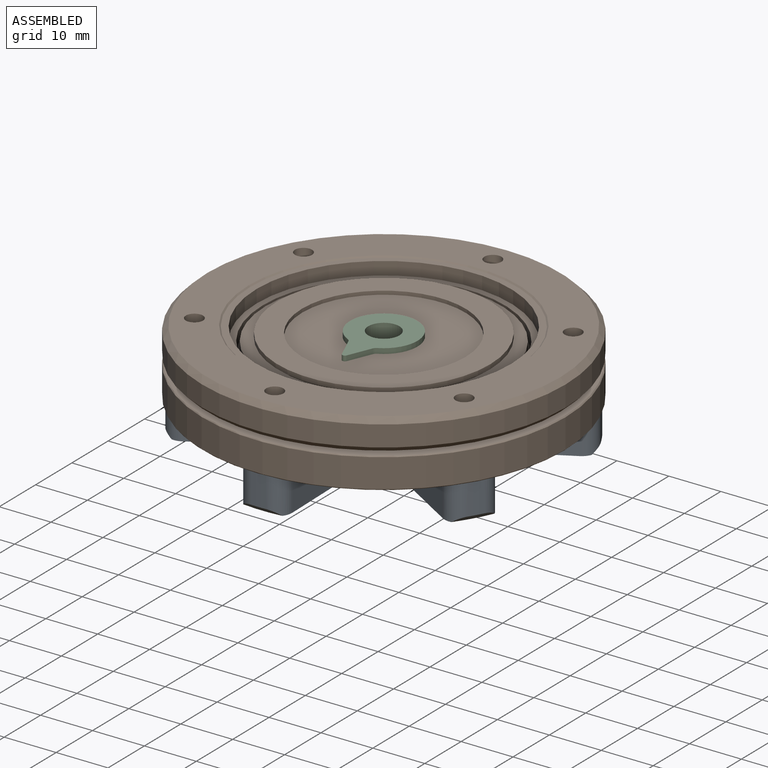
[diagram: assembled view]
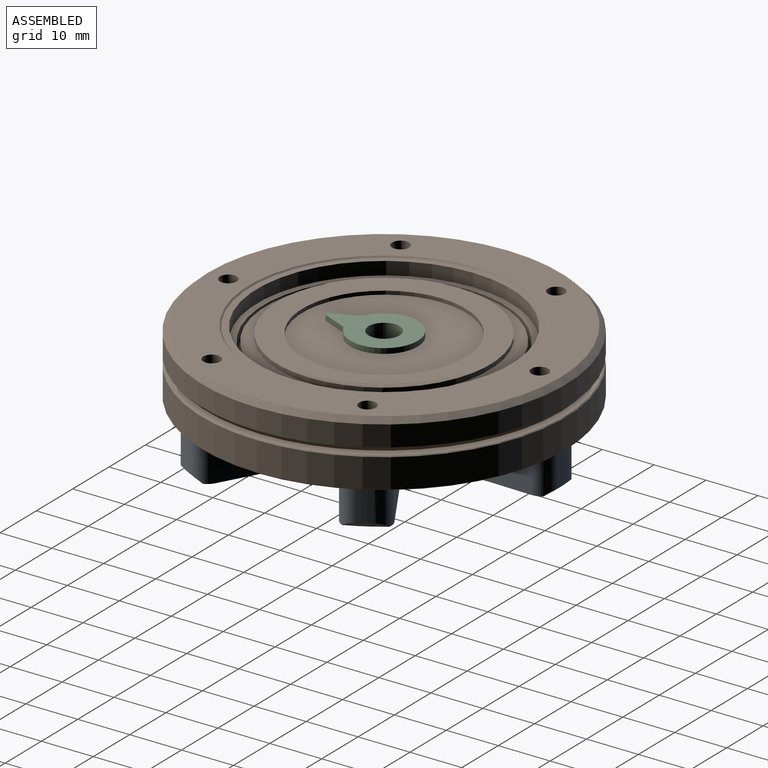
[diagram: assembled view, second angle]
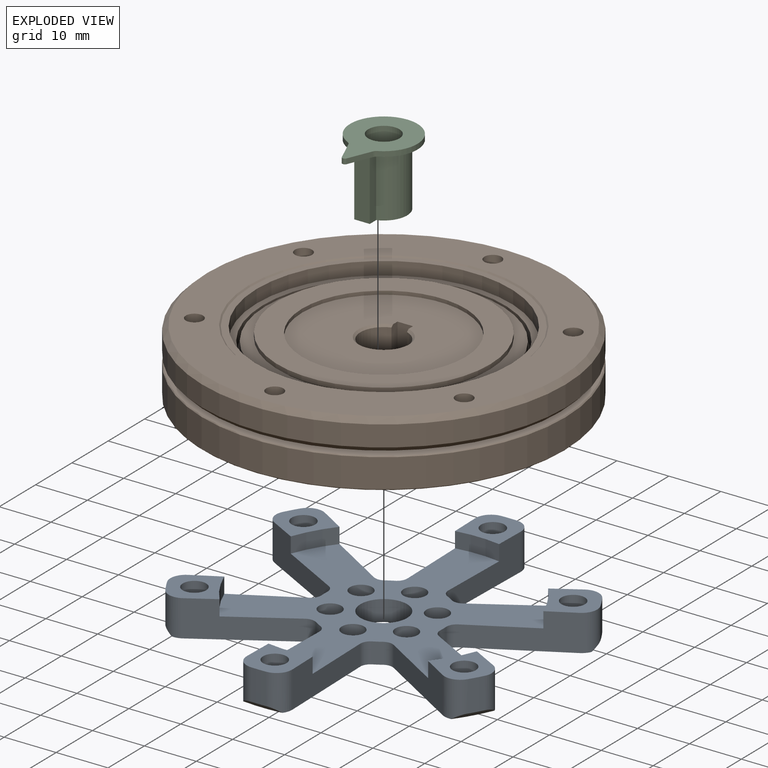
[diagram: exploded view]
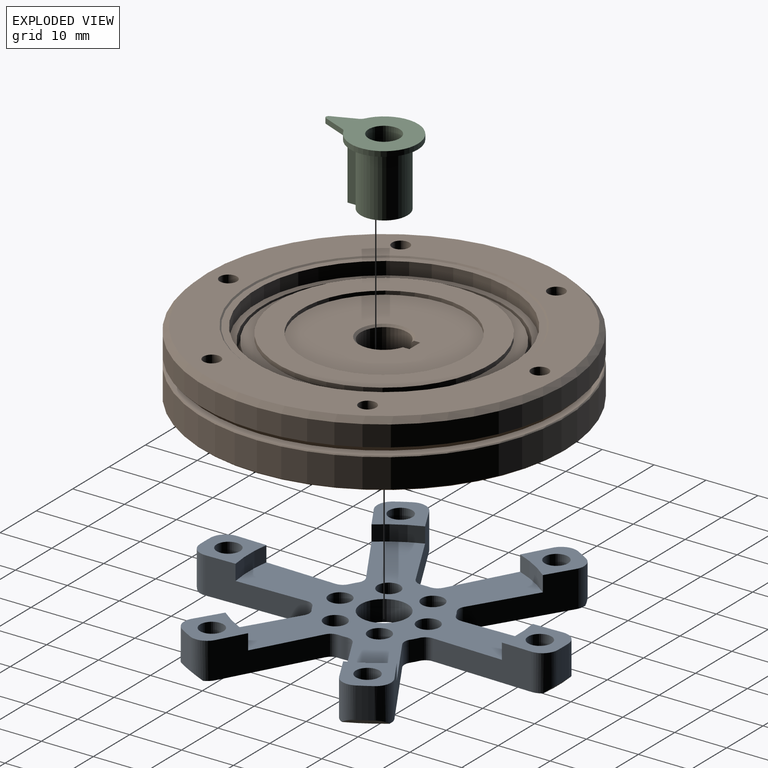
[diagram: exploded view, second angle]
ASSEMBLY  parts=3 mates=2
PART A: 93 faces, bbox 69x63.3x7 mm
  f0: cylinder r=1.25mm len=2.5mm, axis (0,0,-1), area 15.7mm2, adj f41,f59
  f1: cylinder r=1.25mm len=2.5mm, axis (0,0,-1), area 15.7mm2, adj f41,f61
  f2: cylinder r=1.25mm len=2.5mm, axis (0,0,-1), area 15.7mm2, adj f41,f63
  f3: cylinder r=1.25mm len=2.5mm, axis (0,0,-1), area 15.7mm2, adj f41,f65
  f4: cylinder r=1.25mm len=2.5mm, axis (0,0,-1), area 15.7mm2, adj f41,f67
  f5: cylinder r=1.25mm len=2.5mm, axis (0,0,-1), area 15.7mm2, adj f41,f57
  f6: cylinder r=34.5mm len=6mm, axis (0,0,1), area 18.2mm2, adj f7,f51,f82,f83
  f7: plane 10.85x10.78mm, normal (0,0,1), area 54.8mm2, adj f6,f8,f10,f16,f19,f82,f83
  f8: cylinder r=26mm len=7.35mm, axis (0,0,1), area 25.6mm2, adj f7,f10,f16,f46
  f9: plane 16.91x9.24mm, normal (-0.88,0.48,0), area 94.3mm2, adj f41,f44,f45,f46,f70,f81
  f10: plane 16.91x9.24mm, normal (0.88,0.48,0), area 94.3mm2, adj f7,f8,f41,f46,f69,f82
  f11: cylinder r=11.46mm len=4mm, axis (0,0,-1), area 6.2mm2, adj f41,f46,f69,f70
  f12: cylinder r=2.25mm len=7mm, axis (0,0,-1), area 99mm2, adj f41,f44
  f13: cylinder r=34.5mm len=6mm, axis (0,0,1), area 18.2mm2, adj f14,f52,f84,f85
  f14: plane 8.85x8.76mm, normal (0,0,1), area 54.8mm2, adj f13,f15,f17,f23,f26,f84,f85
  f15: cylinder r=26mm len=8.49mm, axis (0,0,1), area 25.6mm2, adj f14,f17,f23,f46
  f16: plane 16.46x10.03mm, normal (-0.85,-0.52,0), area 94.3mm2, adj f7,f8,f41,f46,f72,f83
  f17: plane 19.27x7mm, normal (0.02,1,0), area 94.3mm2, adj f14,f15,f41,f46,f71,f84
  f18: cylinder r=11.46mm len=4mm, axis (0,0,-1), area 6.2mm2, adj f41,f46,f71,f72
  f19: cylinder r=2.25mm len=7mm, axis (0,0,-1), area 99mm2, adj f7,f41
  f20: cylinder r=34.5mm len=6mm, axis (0,0,1), area 18.2mm2, adj f21,f53,f86,f87
  f21: plane 10.85x10.78mm, normal (0,0,1), area 54.8mm2, adj f20,f22,f24,f30,f33,f86,f87
  f22: cylinder r=26mm len=7.35mm, axis (0,0,1), area 25.6mm2, adj f21,f24,f30,f46
  f23: plane 19.27x7mm, normal (0.02,-1,0), area 94.3mm2, adj f14,f15,f41,f46,f74,f85
  f24: plane 16.46x10.03mm, normal (-0.85,0.52,0), area 94.3mm2, adj f21,f22,f41,f46,f73,f86
  f25: cylinder r=11.46mm len=4mm, axis (0,0,-1), area 6.2mm2, adj f41,f46,f73,f74
  f26: cylinder r=2.25mm len=7mm, axis (0,0,-1), area 99mm2, adj f14,f41
  f27: cylinder r=34.5mm len=6mm, axis (0,0,1), area 18.2mm2, adj f28,f54,f88,f89
  f28: plane 10.85x10.78mm, normal (0,0,1), area 54.8mm2, adj f27,f29,f31,f37,f40,f88,f89
  f29: cylinder r=26mm len=7.35mm, axis (0,0,1), area 25.6mm2, adj f28,f31,f37,f46
  f30: plane 16.91x9.24mm, normal (0.88,-0.48,0), area 94.3mm2, adj f21,f22,f41,f46,f76,f87
  f31: plane 16.91x9.24mm, normal (-0.88,-0.48,0), area 94.3mm2, adj f28,f29,f41,f46,f75,f88
  f32: cylinder r=11.46mm len=4mm, axis (0,0,-1), area 6.2mm2, adj f41,f46,f75,f76
  f33: cylinder r=2.25mm len=7mm, axis (0,0,-1), area 99mm2, adj f21,f41
  f34: cylinder r=34.5mm len=6mm, axis (0,0,1), area 18.2mm2, adj f35,f56,f90,f91
  f35: plane 8.85x8.76mm, normal (0,0,1), area 54.8mm2, adj f34,f36,f38,f49,f50,f90,f91
  f36: cylinder r=26mm len=8.49mm, axis (0,0,1), area 25.6mm2, adj f35,f38,f46,f49
  f37: plane 16.46x10.03mm, normal (0.85,0.52,0), area 94.3mm2, adj f28,f29,f41,f46,f78,f89
  f38: plane 19.27x7mm, normal (-0.02,-1,0), area 94.3mm2, adj f35,f36,f41,f46,f77,f90
  f39: cylinder r=11.46mm len=4mm, axis (0,0,-1), area 6.2mm2, adj f41,f46,f77,f78
  f40: cylinder r=2.25mm len=7mm, axis (0,0,-1), area 99mm2, adj f28,f41
  f41: plane 67x61.42mm, normal (0,0,-1), area 1332.1mm2, adj f0,f1,f2,f3,f4,f5,f9,f10
  f42: cylinder r=34.5mm len=6mm, axis (0,0,1), area 18.2mm2, adj f44,f55,f81,f92
  f43: cylinder r=4.5mm len=9mm, axis (0,0,1), area 113.1mm2, adj f41,f46
  f44: plane 10.85x10.78mm, normal (0,0,1), area 54.8mm2, adj f9,f12,f42,f45,f48,f81,f92
  f45: cylinder r=26mm len=7.35mm, axis (0,0,1), area 25.6mm2, adj f9,f44,f46,f48
  f46: plane 52x48.68mm, normal (0,0,1), area 982.7mm2, adj f8,f9,f10,f11,f15,f16,f17,f18
  f47: cylinder r=11.46mm len=4mm, axis (0,0,-1), area 6.2mm2, adj f41,f46,f79,f80
  f48: plane 16.46x10.03mm, normal (0.85,-0.52,0), area 94.3mm2, adj f41,f44,f45,f46,f80,f92
  f49: plane 19.27x7mm, normal (-0.02,1,0), area 94.3mm2, adj f35,f36,f41,f46,f79,f91
  f50: cylinder r=2.25mm len=7mm, axis (0,0,-1), area 99mm2, adj f35,f41
  f51: cone r=34.5mm half-angle=45deg, axis (0,0,1), area 8.8mm2, adj f6,f41,f82,f83
  f52: cone r=34.5mm half-angle=45deg, axis (0,0,1), area 8.8mm2, adj f13,f41,f84,f85
  f53: cone r=34.5mm half-angle=45deg, axis (0,0,1), area 8.8mm2, adj f20,f41,f86,f87
  f54: cone r=34.5mm half-angle=45deg, axis (0,0,1), area 8.8mm2, adj f27,f41,f88,f89
  f55: cone r=34.5mm half-angle=45deg, axis (0,0,1), area 8.8mm2, adj f41,f42,f81,f92
  f56: cone r=34.5mm half-angle=45deg, axis (0,0,1), area 8.8mm2, adj f34,f41,f90,f91
  f57: plane 4.3x4.3mm, normal (0,0,1), area 9.6mm2, adj f5,f58
  f58: cylinder r=2.15mm len=4.3mm, axis (0,0,1), area 27mm2, adj f46,f57
  f59: plane 4.3x4.3mm, normal (0,0,1), area 9.6mm2, adj f0,f60
  f60: cylinder r=2.15mm len=4.3mm, axis (0,0,1), area 27mm2, adj f46,f59
  f61: plane 4.3x4.3mm, normal (0,0,1), area 9.6mm2, adj f1,f62
  f62: cylinder r=2.15mm len=4.3mm, axis (0,0,1), area 27mm2, adj f46,f61
  f63: plane 4.3x4.3mm, normal (0,0,1), area 9.6mm2, adj f2,f64
  f64: cylinder r=2.15mm len=4.3mm, axis (0,0,1), area 27mm2, adj f46,f63
  f65: plane 4.3x4.3mm, normal (0,0,1), area 9.6mm2, adj f3,f66
  f66: cylinder r=2.15mm len=4.3mm, axis (0,0,1), area 27mm2, adj f46,f65
  f67: plane 4.3x4.3mm, normal (0,0,1), area 9.6mm2, adj f4,f68
  f68: cylinder r=2.15mm len=4.3mm, axis (0,0,1), area 27mm2, adj f46,f67
  f69: cylinder r=2mm len=4mm, axis (0,0,-1), area 9.1mm2, adj f10,f11,f41,f46
  f70: cylinder r=2mm len=4mm, axis (0,0,-1), area 9.1mm2, adj f9,f11,f41,f46
  f71: cylinder r=2mm len=4mm, axis (0,0,-1), area 9.1mm2, adj f17,f18,f41,f46
  f72: cylinder r=2mm len=4mm, axis (0,0,-1), area 9.1mm2, adj f16,f18,f41,f46
  f73: cylinder r=2mm len=4mm, axis (0,0,-1), area 9.1mm2, adj f24,f25,f41,f46
  f74: cylinder r=2mm len=4mm, axis (0,0,-1), area 9.1mm2, adj f23,f25,f41,f46
  f75: cylinder r=2mm len=4mm, axis (0,0,-1), area 9.1mm2, adj f31,f32,f41,f46
  f76: cylinder r=2mm len=4mm, axis (0,0,-1), area 9.1mm2, adj f30,f32,f41,f46
  f77: cylinder r=2mm len=4mm, axis (0,0,-1), area 9.1mm2, adj f38,f39,f41,f46
  f78: cylinder r=2mm len=4mm, axis (0,0,-1), area 9.1mm2, adj f37,f39,f41,f46
  f79: cylinder r=2mm len=4mm, axis (0,0,-1), area 9.1mm2, adj f41,f46,f47,f49
  f80: cylinder r=2mm len=4mm, axis (0,0,-1), area 9.1mm2, adj f41,f46,f47,f48
  f81: cylinder r=3mm len=7mm, axis (0,0,1), area 30.8mm2, adj f9,f41,f42,f44,f55
  f82: cylinder r=3mm len=7mm, axis (0,0,1), area 30.8mm2, adj f6,f7,f10,f41,f51
  f83: cylinder r=3mm len=7mm, axis (0,0,1), area 30.8mm2, adj f6,f7,f16,f41,f51
  f84: cylinder r=3mm len=7mm, axis (0,0,1), area 30.8mm2, adj f13,f14,f17,f41,f52
  f85: cylinder r=3mm len=7mm, axis (0,0,1), area 30.8mm2, adj f13,f14,f23,f41,f52
  f86: cylinder r=3mm len=7mm, axis (0,0,1), area 30.8mm2, adj f20,f21,f24,f41,f53
  f87: cylinder r=3mm len=7mm, axis (0,0,1), area 30.8mm2, adj f20,f21,f30,f41,f53
  f88: cylinder r=3mm len=7mm, axis (0,0,1), area 30.8mm2, adj f27,f28,f31,f41,f54
  f89: cylinder r=3mm len=7mm, axis (0,0,1), area 30.8mm2, adj f27,f28,f37,f41,f54
  f90: cylinder r=3mm len=7mm, axis (0,0,1), area 30.8mm2, adj f34,f35,f38,f41,f56
  f91: cylinder r=3mm len=7mm, axis (0,0,1), area 30.8mm2, adj f34,f35,f41,f49,f56
  f92: cylinder r=3mm len=7mm, axis (0,0,1), area 30.8mm2, adj f41,f42,f44,f48,f55
PART B: 55 faces, bbox 13.5x70x70 mm
  f0: cylinder r=1.65mm len=6mm, axis (1,0,0), area 62.2mm2, adj f40,f47
  f1: cylinder r=1.65mm len=6mm, axis (1,0,0), area 62.2mm2, adj f40,f47
  f2: cylinder r=1.65mm len=6mm, axis (1,0,0), area 62.2mm2, adj f40,f47
  f3: cylinder r=1.65mm len=6mm, axis (1,0,0), area 62.2mm2, adj f40,f47
  f4: cylinder r=1.65mm len=6mm, axis (1,0,0), area 62.2mm2, adj f40,f47
  f5: cylinder r=1.65mm len=6mm, axis (-1,0,0), area 62.2mm2, adj f41,f48
  f6: cylinder r=1.65mm len=6mm, axis (-1,0,0), area 62.2mm2, adj f41,f48
  f7: cylinder r=1.65mm len=6mm, axis (-1,0,0), area 62.2mm2, adj f41,f48
  f8: cylinder r=1.65mm len=6mm, axis (-1,0,0), area 62.2mm2, adj f41,f48
  f9: cylinder r=1.65mm len=6mm, axis (-1,0,0), area 62.2mm2, adj f41,f48
  f10: cylinder r=1.65mm len=6mm, axis (1,0,0), area 62.2mm2, adj f40,f47
  f11: cylinder r=1.65mm len=6mm, axis (-1,0,0), area 62.2mm2, adj f41,f48
  f12: cylinder r=19.75mm len=39.5mm, axis (-1,0,0), area 195.2mm2, adj f34,f51
  f13: cylinder r=22.75mm len=45.5mm, axis (-1,0,0), area 238.8mm2, adj f14,f51
  f14: torus R=21.18mm, axis (-1,0,0), area 120.2mm2, adj f13,f15
  f15: cylinder r=23.3mm len=46.6mm, axis (-1,0,0), area 334.8mm2, adj f14,f50
  f16: cylinder r=24.5mm len=49mm, axis (-1,0,0), area 386.7mm2, adj f49,f50
  f17: cone r=26mm half-angle=45deg, axis (-1,0,0), area 58.8mm2, adj f41,f49
  f18: cone r=35mm half-angle=45deg, axis (1,0,0), area 306.6mm2, adj f19,f41
  f19: cylinder r=35mm len=70mm, axis (-1,0,0), area 879.6mm2, adj f18,f20
  f20: cone r=34mm half-angle=45deg, axis (-1,0,0), area 306.6mm2, adj f19,f48
  f21: cylinder r=26mm len=52mm, axis (-1,0,0), area 81.7mm2, adj f47,f48
  f22: cone r=35mm half-angle=45deg, axis (1,0,0), area 62mm2, adj f23,f47
  f23: cylinder r=35mm len=70mm, axis (-1,0,0), area 1231.5mm2, adj f22,f24
  f24: cone r=34.8mm half-angle=45deg, axis (-1,0,0), area 62mm2, adj f23,f40
  f25: cone r=25.74mm half-angle=45deg, axis (1,0,0), area 58.8mm2, adj f40,f46
  f26: cylinder r=24.5mm len=49mm, axis (-1,0,0), area 344.3mm2, adj f45,f46
  f27: cylinder r=23.3mm len=46.6mm, axis (-1,0,0), area 334.8mm2, adj f28,f45
  f28: torus R=21.18mm, axis (-1,0,0), area 664.5mm2, adj f27,f29
  f29: cylinder r=19.1mm len=38.2mm, axis (-1,0,0), area 321.4mm2, adj f28,f44
  f30: cylinder r=10mm len=20mm, axis (-1,0,0), area 188.8mm2, adj f39,f44
  f31: cylinder r=15.75mm len=31.5mm, axis (-1,0,0), area 69.3mm2, adj f38,f43
  f32: cylinder r=20.5mm len=41mm, axis (-1,0,0), area 108.2mm2, adj f42,f43
  f33: cylinder r=19.1mm len=38.2mm, axis (-1,0,0), area 338.2mm2, adj f34,f42
  f34: torus R=21.18mm, axis (-1,0,0), area 114.3mm2, adj f12,f33
  f35: cone r=4.5mm half-angle=45deg, axis (1,0,0), area 15mm2, adj f37,f39,f53,f54
  f36: cone r=4.5mm half-angle=45deg, axis (-1,0,0), area 15mm2, adj f37,f38,f53,f54
  f37: cylinder r=4.5mm len=10.6mm, axis (1,0,0), area 267.3mm2, adj f35,f36,f53,f54
  f38: plane 31.5x31.5mm, normal (-1,0,0), area 700.6mm2, adj f31,f36,f52,f53,f54
  f39: plane 20x20mm, normal (1,0,0), area 235.5mm2, adj f30,f35,f52,f53,f54
  f40: plane 69.6x69.6mm, normal (1,0,0), area 1629.6mm2, adj f0,f1,f2,f3,f4,f10,f24,f25
  f41: plane 68x68mm, normal (-1,0,0), area 1456.6mm2, adj f5,f6,f7,f8,f9,f11,f17,f18
  f42: plane 41x41mm, normal (1,0,0), area 174.2mm2, adj f32,f33
  f43: plane 41x41mm, normal (-1,0,0), area 540.9mm2, adj f31,f32
  f44: plane 38.2x38.2mm, normal (1,0,0), area 831.9mm2, adj f29,f30
  f45: plane 49x49mm, normal (1,0,0), area 180.2mm2, adj f26,f27
  f46: plane 51.49x51.49mm, normal (1,0,0), area 196.4mm2, adj f25,f26
  f47: plane 69.6x69.6mm, normal (-1,0,0), area 1629.6mm2, adj f0,f1,f2,f3,f4,f10,f21,f22
  f48: plane 68x68mm, normal (1,0,0), area 1456.6mm2, adj f5,f6,f7,f8,f9,f11,f20,f21
  f49: plane 51.49x51.49mm, normal (-1,0,0), area 196.4mm2, adj f16,f17
  f50: plane 49x49mm, normal (-1,0,0), area 180.2mm2, adj f15,f16
  f51: plane 45.5x45.5mm, normal (-1,0,0), area 400.6mm2, adj f12,f13
  f52: plane 11.4x3mm, normal (0,-1,0), area 34.2mm2, adj f38,f39,f53,f54
  f53: plane 11.41x1.66mm, normal (0,0,1), area 18.7mm2, adj f35,f36,f37,f38,f39,f52
  f54: plane 11.41x1.66mm, normal (0,0,-1), area 18.7mm2, adj f35,f36,f37,f38,f39,f52
PART C: 14 faces, bbox 13x13x17.7 mm
  f0: plane 12x1.76mm, normal (-1,0,0), area 21.1mm2, adj f1,f3,f5,f6
  f1: cylinder r=4.5mm len=12mm, axis (0,1,0), area 302.6mm2, adj f0,f2,f5,f6
  f2: plane 12x1.76mm, normal (1,0,0), area 21.1mm2, adj f1,f3,f5,f6
  f3: plane 12x3mm, normal (0,0,1), area 36mm2, adj f0,f2,f5,f6
  f4: cylinder r=3mm len=13mm, axis (0,1,0), area 245mm2, adj f5,f10
  f5: plane 10.5x9mm, normal (0,-1,0), area 40.1mm2, adj f0,f1,f2,f3,f4
  f6: plane 17.7x13mm, normal (0,-1,0), area 77.4mm2, adj f0,f1,f2,f3,f7,f8,f9,f11
  f7: plane 4.53x1.89mm, normal (0.92,0,0.38), area 4.9mm2, adj f6,f10,f11,f13
  f8: cylinder r=6.5mm len=13mm, axis (0,-1,0), area 35mm2, adj f6,f10,f11,f12
  f9: plane 4.53x1.89mm, normal (-0.92,0,0.38), area 4.9mm2, adj f6,f10,f12,f13
  f10: plane 17.7x13mm, normal (0,1,0), area 117.5mm2, adj f4,f7,f8,f9,f11,f12,f13
  f11: cylinder r=1mm len=1mm, axis (0,-1,0), area 0.7mm2, adj f6,f7,f8,f10
  f12: cylinder r=1mm len=1mm, axis (0,-1,0), area 0.7mm2, adj f6,f8,f9,f10
  f13: cylinder r=0.5mm len=1mm, axis (0,-1,0), area 1.2mm2, adj f6,f7,f9,f10
PLACE A rot(axis=(0,0,-1),90deg) t=(18.86,3.22,6.81)mm fixed
PLACE B rot(axis=(0,1,0),90deg) t=(18.86,3.22,19.93)mm
PLACE C rot(axis=(1,0,0),90deg) t=(18.86,3.22,24.31)mm
MATE fastened A.f6 <-> B.f12  axis (0,0,1) through (18.86,3.22,13.81)mm
MATE revolute C.f4 <-> A.f6  axis (0,0,-1) through (18.86,3.22,12.31)mm
